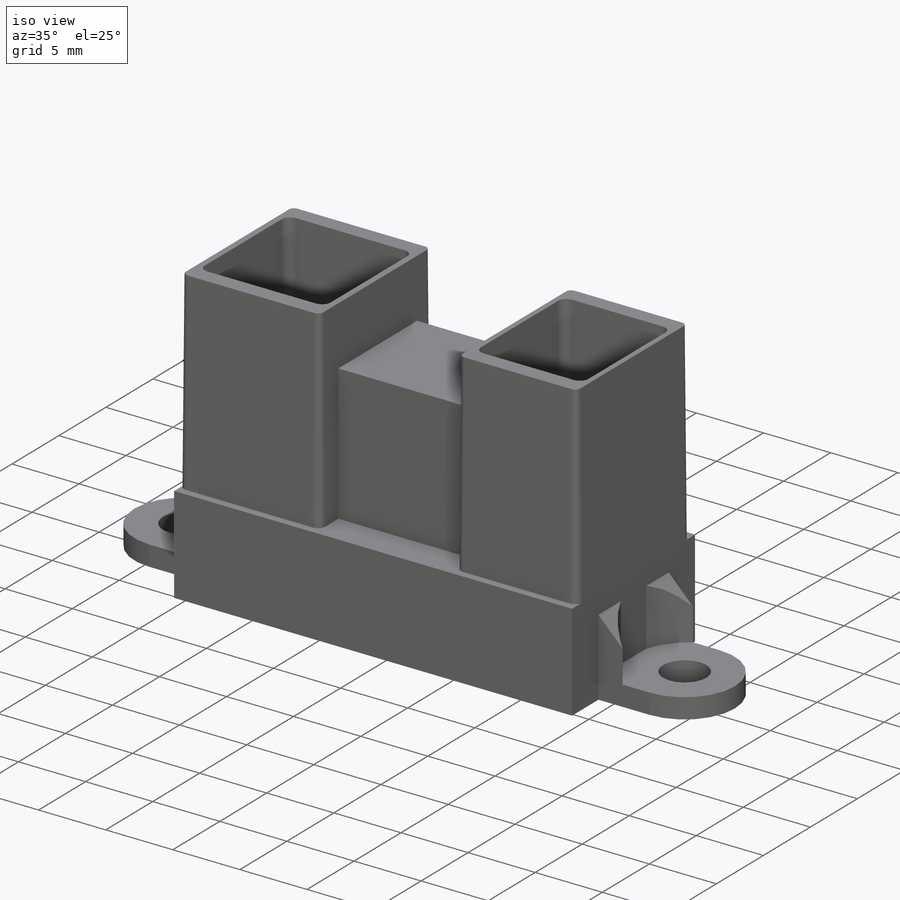
[diagram: iso view]
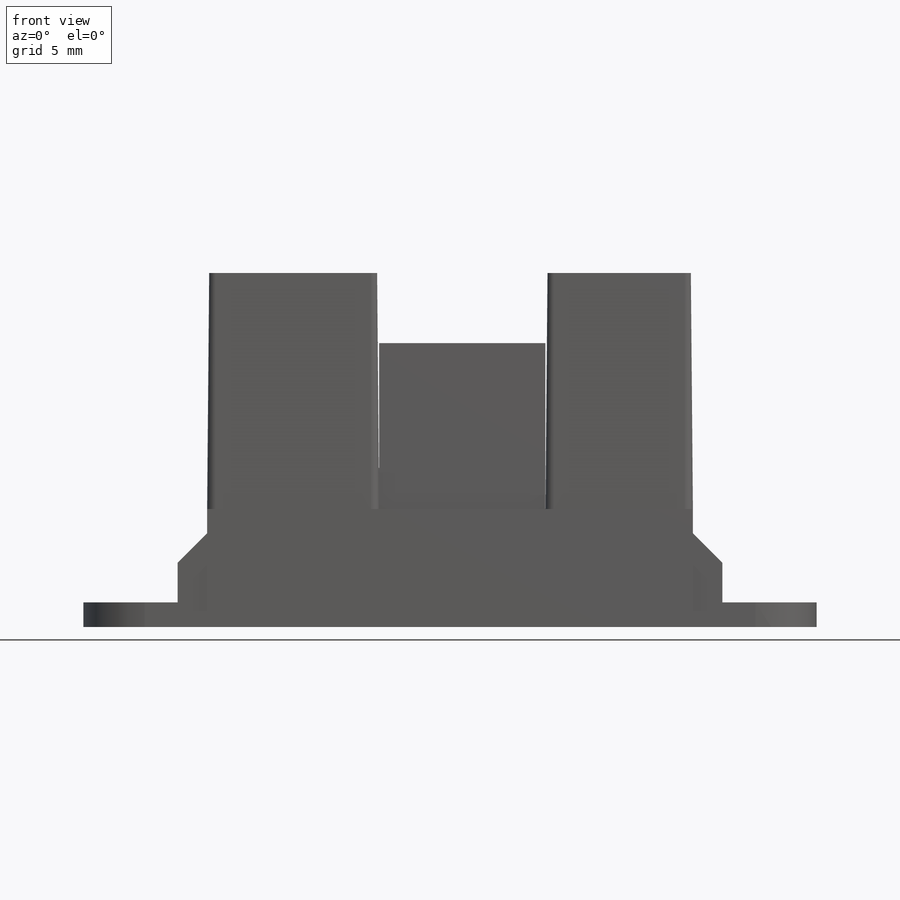
[diagram: front view]
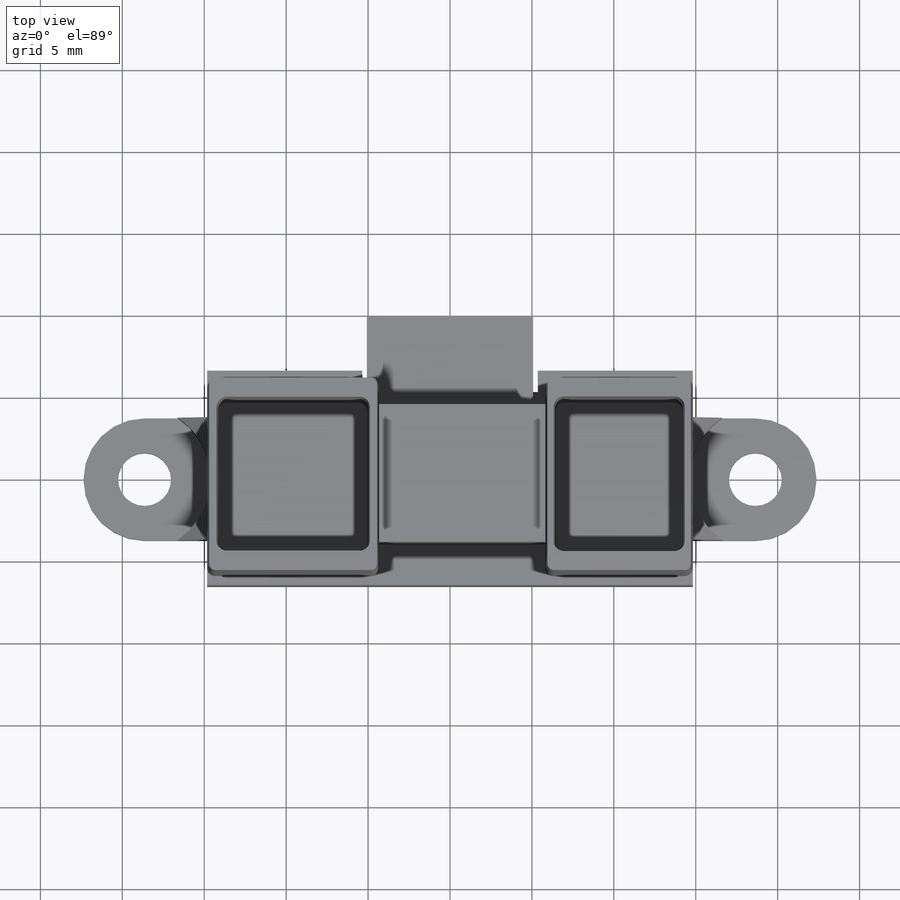
[diagram: top view]
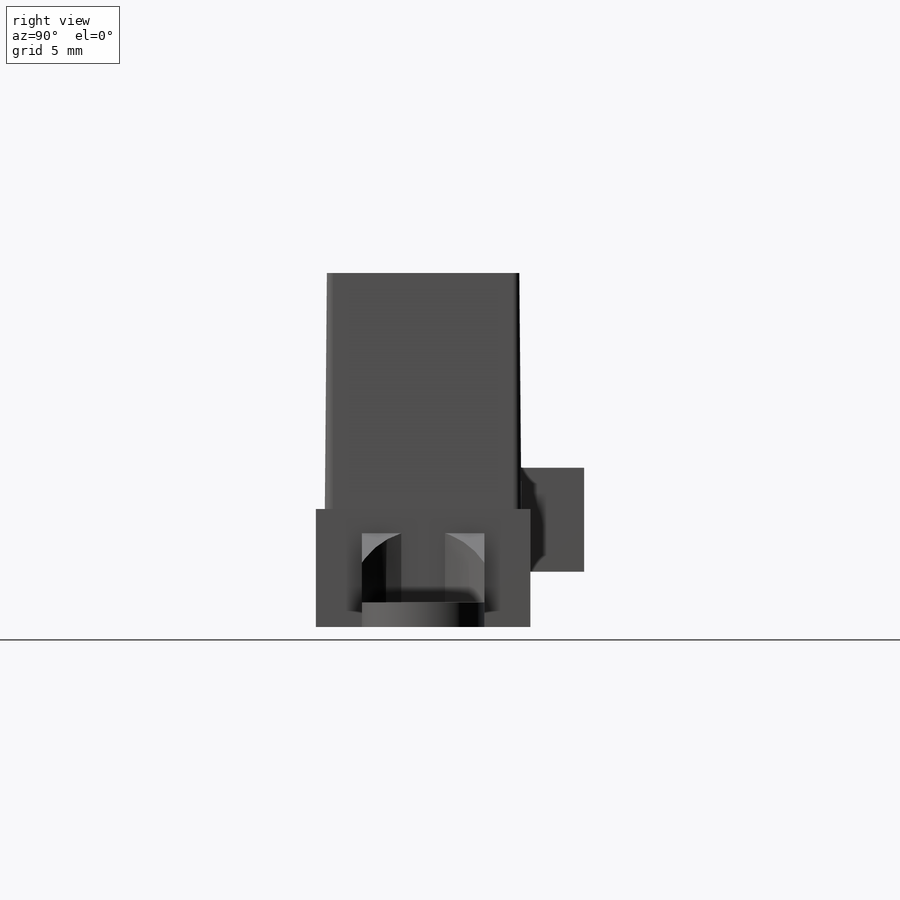
[diagram: right view]
SOLIDWORKS PART (.sldprt)
format: sldprt  version: not decoded by parser v0  size: 419,328 bytes
history: native  units: mm
features: sketch x9, extrude x8, material x1, plane x1, cut_extrude x1 (+12 scaffold rows collapsed)
feature tree (32):
  scaffold x12  (default folders/planes/origin — collapsed)
  material  "ABS"
  sketch  "Sketch1"  dims[c1.D1=29.65mm c1.D2=13.09mm c1.D3=332.486mm c1.D4=5.355mm c2.D3=0.77mm]
  extrude  "Boss-Extrude1"  Depth=7.2mm
  sketch  "Sketch2"  dims[D1=3.22mm D2=7.47mm D3=7.55mm]
  extrude  "Boss-Extrude2"  Depth=1.5mm
  sketch  "Sketch3"  dims[D1=2.22mm]
  extrude  "Boss-Extrude3"  Depth=0.7mm
  sketch  "Sketch4"  dims[D3=0.5mm D6=0.5mm D11=0.5mm D1=9.0mm D2=12.0mm D4=0.63mm D5=1.4mm D7=12.0mm D8=10.5mm D9=0.7mm D10=1.42mm]
  extrude  "Boss-Extrude4"  Depth=14.4mm
  sketch  "Sketch5"  dims[D1=8.4mm]
  extrude  "Boss-Extrude5"  Depth=10.12mm
  plane  "Plane1"  Offset=3.37mm
  sketch  "Sketch6"  dims[D1=10.15mm D2=5.5mm]
  extrude  "Boss-Extrude6"  Depth=6.35mm
  sketch  "Sketch7"  dims[D1=1.8mm D2=2.4mm]
  extrude  "Boss-Extrude7"  Depth=4.22mm
  sketch  "Sketch8"  dims[c1.D1=1.8mm c2.D1=45.0deg]
  cut_extrude  "Cut-Extrude1"  [1 undecoded]
  sketch  "Sketch9"  dims[D1=0.5mm D2=0.5mm]
  extrude  "Boss-Extrude8"  Depth=1.2mm
decode coverage: 17 of 18 modeling features carry decoded parameters
note: 1 parameter value undecoded
note: suppression state not decoded; provenance and decode notes live in map.json
